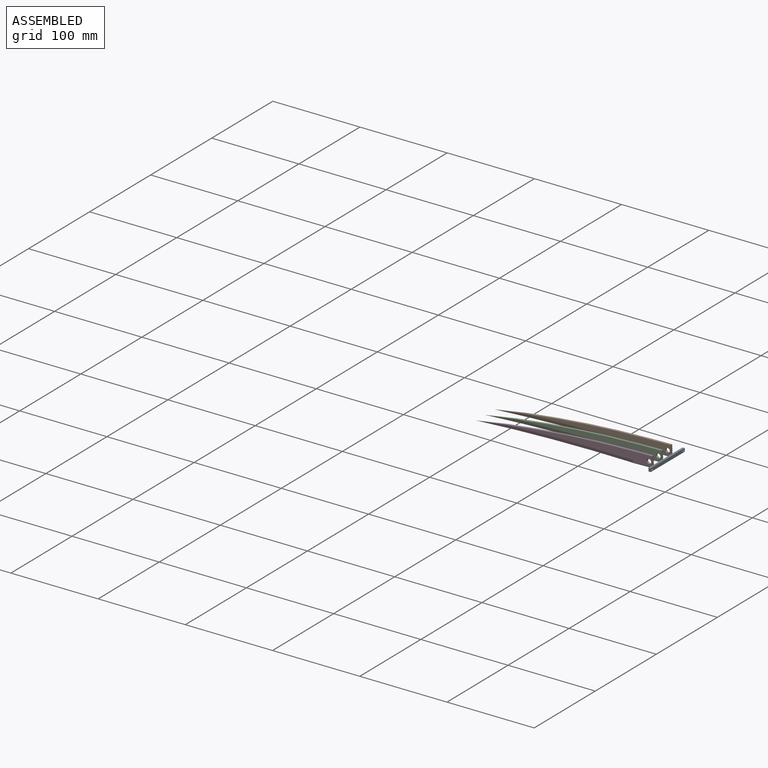
[diagram: assembled view]
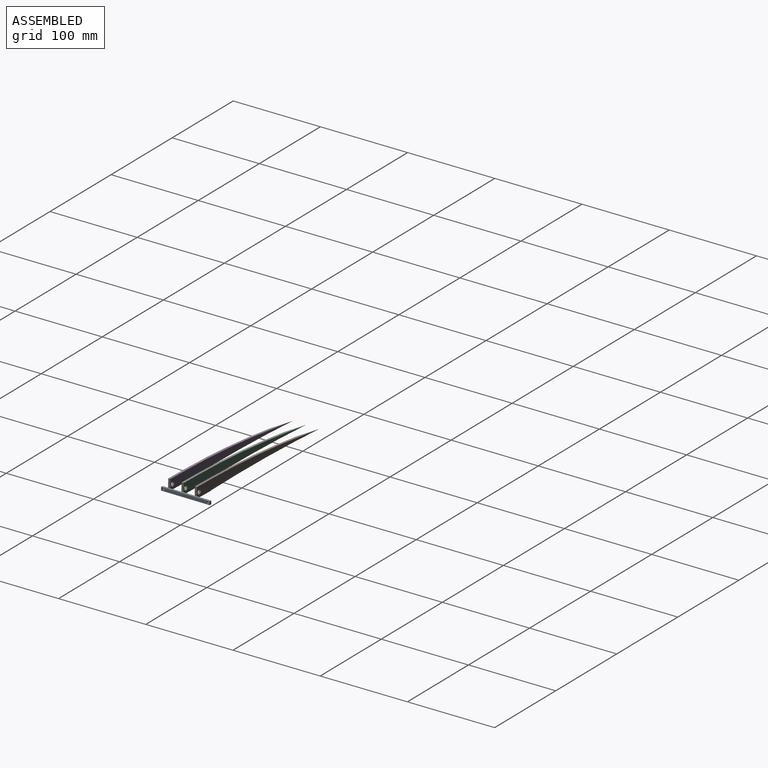
[diagram: assembled view, second angle]
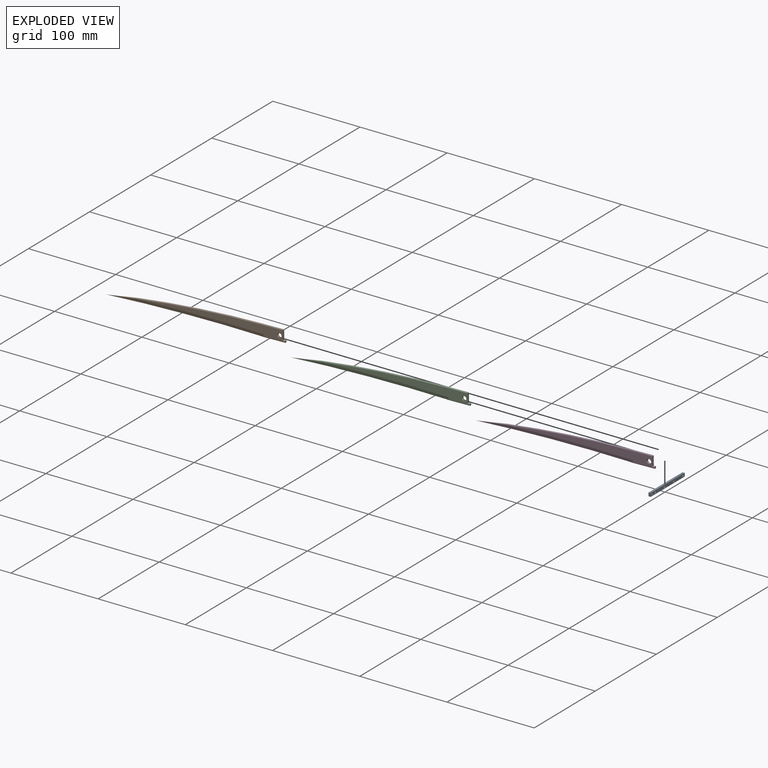
[diagram: exploded view]
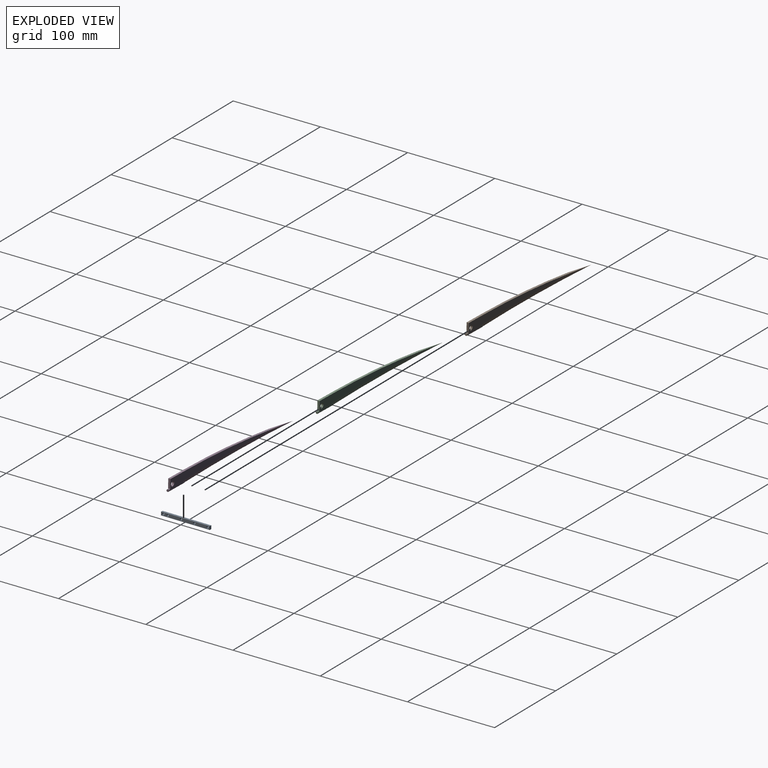
[diagram: exploded view, second angle]
ASSEMBLY  parts=4 mates=3
PART A: 11 faces, bbox 55.9x2.5x3.8 mm
  f0: plane 55.88x2.54mm, normal (0,0,1), area 141.9mm2, adj f1,f6,f7,f8
  f1: plane 3.81x2.54mm, normal (-1,0,0), area 9.7mm2, adj f0,f2,f7,f8
  f2: plane 55.88x2.54mm, normal (0,0,-1), area 141.9mm2, adj f1,f6,f7,f8
  f3: cylinder r=1.27mm len=2.54mm, axis (0,1,0), area 20.3mm2, adj f7,f8
  f4: cylinder r=1.27mm len=2.54mm, axis (0,1,0), area 20.3mm2, adj f7,f8
  f5: cylinder r=1.27mm len=2.54mm, axis (0,1,0), area 20.3mm2, adj f7,f8
  f6: plane 3.81x2.54mm, normal (1,0,0), area 9.7mm2, adj f0,f2,f7,f8
  f7: plane 55.88x3.81mm, normal (0,-1,0), area 187.6mm2, adj f0,f1,f2,f3,f4,f5,f6,f9
  f8: plane 55.88x3.81mm, normal (0,1,0), area 187.6mm2, adj f0,f1,f2,f3,f4,f5,f6,f9
  f9: cylinder r=1.27mm len=2.54mm, axis (0,-1,0), area 20.3mm2, adj f7,f8
  f10: cylinder r=1.27mm len=2.54mm, axis (0,-1,0), area 20.3mm2, adj f7,f8
PART B: 12 faces, bbox 205.9x2.5x12.8 mm
  f0: cylinder r=1250.95mm len=177.8mm, axis (0,1,0), area 407.9mm2, adj f1,f2,f3,f4,f5
  f1: plane 167.03x11.43mm, normal (0,-1,0), area 997.4mm2, adj f0,f3,f5,f6,f7,f8,f10
  f2: plane 167.03x11.43mm, normal (0,1,0), area 997.4mm2, adj f0,f4,f5,f6,f7,f8,f11
  f3: cone r=2198.1mm half-angle=70deg, axis (0,-1,0), area 601.2mm2, adj f0,f1,f4,f10
  f4: cone r=2201.59mm half-angle=70deg, axis (0,1,0), area 601.2mm2, adj f0,f2,f3,f11
  f5: plane 25.4x2.54mm, normal (0,0,1), area 64.5mm2, adj f0,f1,f2,f7
  f6: cylinder r=2.54mm len=5.08mm, axis (0,1,0), area 40.5mm2, adj f1,f2
  f7: plane 11.43x2.54mm, normal (1,0,0), area 26.5mm2, adj f1,f2,f5,f8
  f8: cylinder r=1.27mm len=27.94mm, axis (-1,0,0), area 112.7mm2, adj f1,f2,f7,f9,f10,f11
  f9: plane 2.54x2.54mm, normal (1,0,0), area 5.1mm2, adj f8
  f10: plane 3.49x3.35mm, normal (-0.34,-0.94,0), area 5.2mm2, adj f1,f3,f8
  f11: plane 3.49x3.35mm, normal (-0.34,0.94,0), area 5.2mm2, adj f2,f4,f8
PART C: same geometry as B
PART D: same geometry as B
PLACE A rot(axis=(-0.01,-0.01,1),90.1deg) t=(-1.79,5.02,-0.79)mm fixed
PLACE B rot(axis=(-0.19,-0.98,0.05),1.4deg) t=(-77.26,15.11,2.47)mm
PLACE C rot(axis=(-0.19,-0.98,0.05),1.4deg) t=(-77.25,-0.13,2.54)mm
PLACE D rot(axis=(-0.19,-0.98,0.05),1.4deg) t=(-77.23,-15.37,2.61)mm
MATE revolute A.f3 <-> D.f8  axis (1,0,0.02) through (-0.49,-15.3,-0.67)mm
MATE revolute A.f5 <-> B.f8  axis (1,0,0.02) through (-0.53,15.18,-0.81)mm
MATE revolute C.f8 <-> A.f4  axis (1,0,0.02) through (-0.51,-0.06,-0.74)mm
